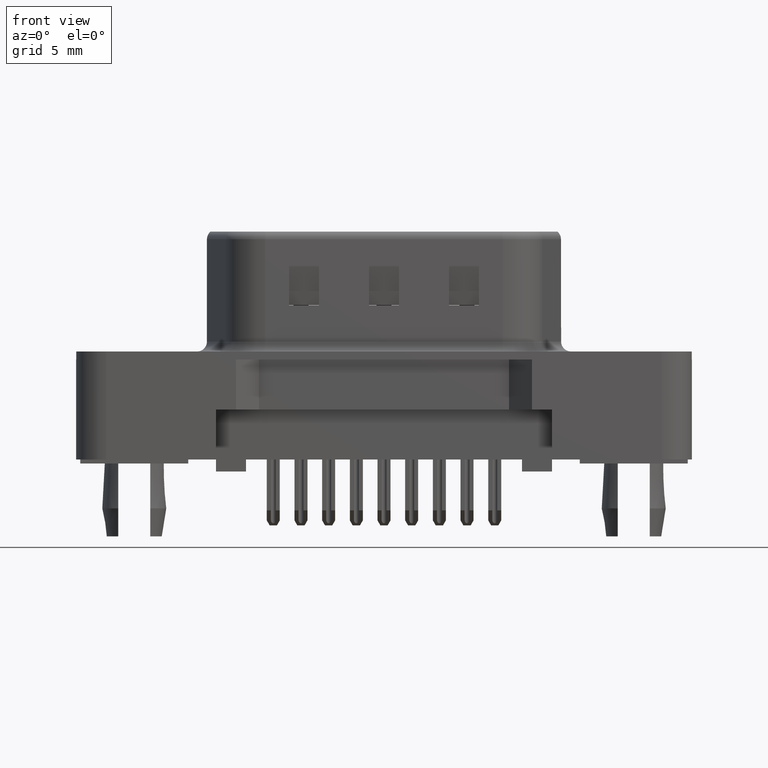
[diagram: clean part render]
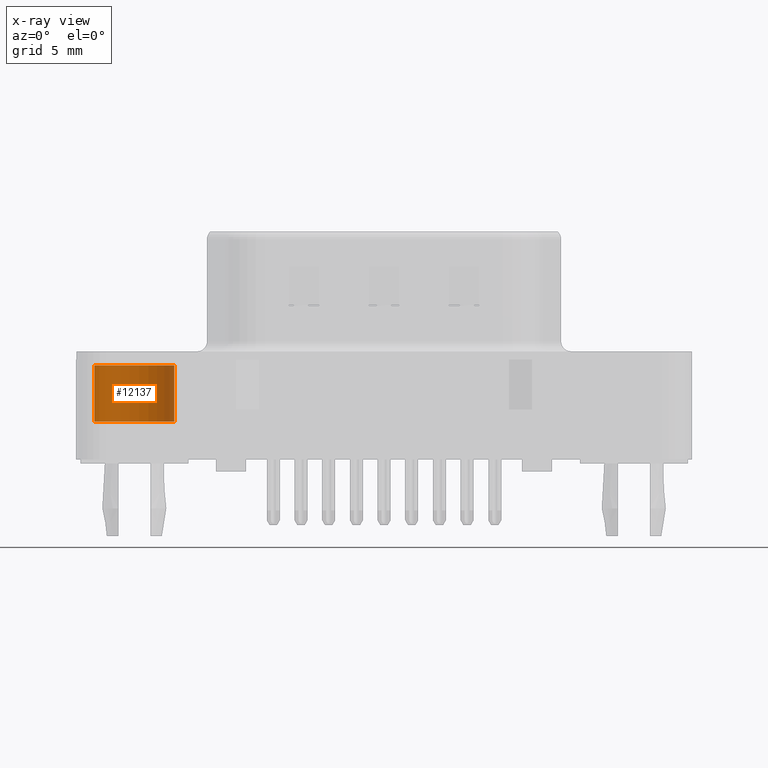
[diagram: x-ray — body ghosted, one internal face saturated and labeled with its STEP entity id]
A machine part, front view, then the same camera in x-ray: the body is ghosted and one INTERNAL B-rep face — a face not visible from any outside direction — is saturated and labeled: STEP entity #12137.
In plain terms, the highlighted cylindrical surface (partial cylindrical patch) has radius 2 mm, axis along (0, 0, 1).
Its self-contained STEP definition (entity closure, byte-faithful):
#13 = DIRECTION ( 'NONE',  ( 0.0000000000000000000, 0.0000000000000000000, 1.000000000000000000 ) ) ;
#190 = DIRECTION ( 'NONE',  ( 0.0000000000000000000, 0.0000000000000000000, 1.000000000000000000 ) ) ;
#667 = AXIS2_PLACEMENT_3D ( 'NONE', #12862, #13, #2436 ) ;
#1064 = CARTESIAN_POINT ( 'NONE',  ( 2.000000000000000000, 0.0000000000000000000, -3.100000000000000533 ) ) ;
#1080 = CYLINDRICAL_SURFACE ( 'NONE', #667, 2.000000000000000000 ) ;
#1304 = EDGE_CURVE ( 'NONE', #11365, #13134, #8128, .T. ) ;
#1640 = CIRCLE ( 'NONE', #8191, 2.000000000000000000 ) ;
#2308 = EDGE_CURVE ( 'NONE', #12340, #6186, #10600, .T. ) ;
#2436 = DIRECTION ( 'NONE',  ( 1.000000000000000000, 0.0000000000000000000, 0.0000000000000000000 ) ) ;
#3165 = CARTESIAN_POINT ( 'NONE',  ( -2.000000000000000000, 2.449293598294706414E-16, -0.2999999999999999334 ) ) ;
#3454 = CARTESIAN_POINT ( 'NONE',  ( -2.000000000000000000, 2.449293598294706414E-16, -5.000000000000000000 ) ) ;
#3905 = CARTESIAN_POINT ( 'NONE',  ( 0.0000000000000000000, 0.0000000000000000000, -3.100000000000000533 ) ) ;
#4018 = EDGE_CURVE ( 'NONE', #12340, #11365, #14113, .T. ) ;
#4033 = ORIENTED_EDGE ( 'NONE', *, *, #2308, .F. ) ;
#4424 = DIRECTION ( 'NONE',  ( 0.0000000000000000000, 0.0000000000000000000, 1.000000000000000000 ) ) ;
#5267 = DIRECTION ( 'NONE',  ( 0.0000000000000000000, -0.0000000000000000000, -1.000000000000000000 ) ) ;
#5627 = ORIENTED_EDGE ( 'NONE', *, *, #4018, .T. ) ;
#6186 = VERTEX_POINT ( 'NONE', #3165 ) ;
#6202 = EDGE_LOOP ( 'NONE', ( #4033, #5627, #13831, #14923 ) ) ;
#8128 = LINE ( 'NONE', #12620, #13875 ) ;
#8191 = AXIS2_PLACEMENT_3D ( 'NONE', #14772, #9064, #13699 ) ;
#9064 = DIRECTION ( 'NONE',  ( -0.0000000000000000000, -0.0000000000000000000, -1.000000000000000000 ) ) ;
#9813 = DIRECTION ( 'NONE',  ( 1.000000000000000000, 0.0000000000000000000, 0.0000000000000000000 ) ) ;
#10424 = FACE_OUTER_BOUND ( 'NONE', #6202, .T. ) ;
#10600 = LINE ( 'NONE', #3454, #14507 ) ;
#10954 = CARTESIAN_POINT ( 'NONE',  ( -2.000000000000000000, 2.449293598294706414E-16, -3.100000000000000533 ) ) ;
#11365 = VERTEX_POINT ( 'NONE', #1064 ) ;
#12019 = EDGE_CURVE ( 'NONE', #6186, #13134, #1640, .T. ) ;
#12137 = ADVANCED_FACE ( 'NONE', ( #10424 ), #1080, .F. ) ;
#12163 = AXIS2_PLACEMENT_3D ( 'NONE', #3905, #5267, #9813 ) ;
#12340 = VERTEX_POINT ( 'NONE', #10954 ) ;
#12620 = CARTESIAN_POINT ( 'NONE',  ( 2.000000000000000000, 0.0000000000000000000, -5.000000000000000000 ) ) ;
#12862 = CARTESIAN_POINT ( 'NONE',  ( 0.0000000000000000000, 0.0000000000000000000, -5.000000000000000000 ) ) ;
#13134 = VERTEX_POINT ( 'NONE', #13392 ) ;
#13392 = CARTESIAN_POINT ( 'NONE',  ( 2.000000000000000000, 0.0000000000000000000, -0.2999999999999999334 ) ) ;
#13699 = DIRECTION ( 'NONE',  ( 1.000000000000000000, 0.0000000000000000000, 0.0000000000000000000 ) ) ;
#13831 = ORIENTED_EDGE ( 'NONE', *, *, #1304, .T. ) ;
#13875 = VECTOR ( 'NONE', #4424, 1000.000000000000000 ) ;
#14113 = CIRCLE ( 'NONE', #12163, 2.000000000000000000 ) ;
#14507 = VECTOR ( 'NONE', #190, 1000.000000000000000 ) ;
#14772 = CARTESIAN_POINT ( 'NONE',  ( 0.0000000000000000000, 0.0000000000000000000, -0.2999999999999999334 ) ) ;
#14923 = ORIENTED_EDGE ( 'NONE', *, *, #12019, .F. ) ;